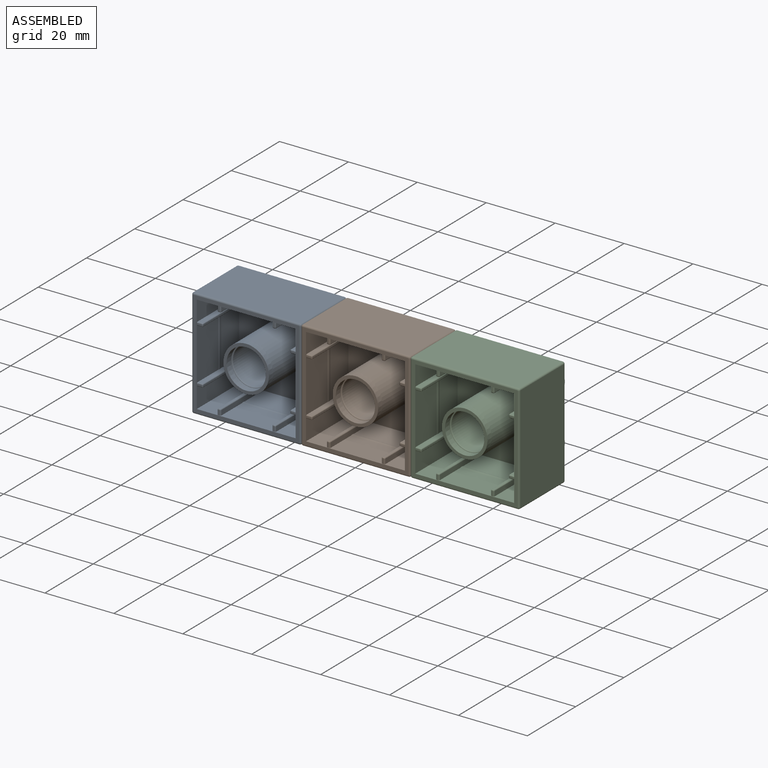
[diagram: assembled view]
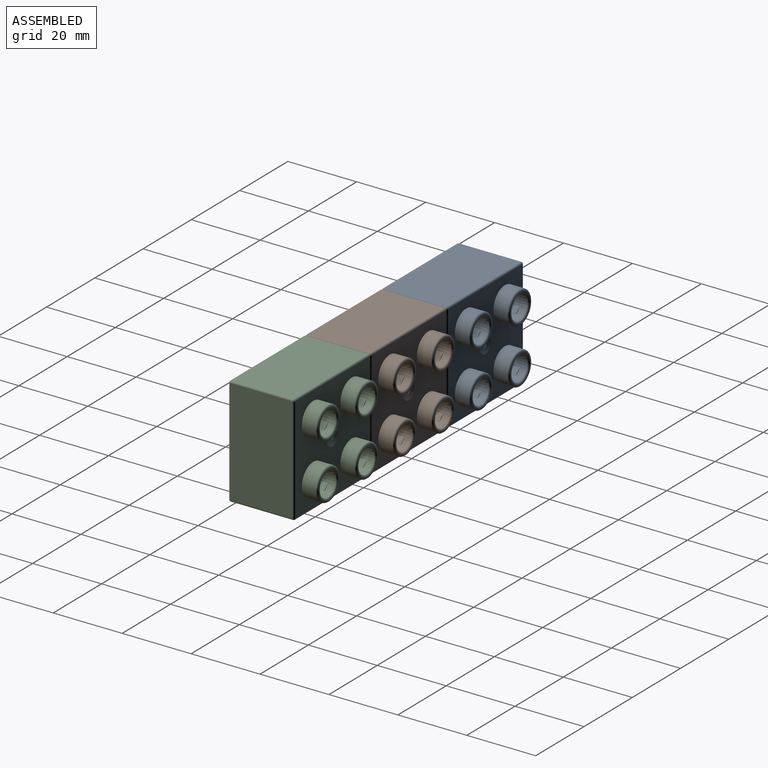
[diagram: assembled view, second angle]
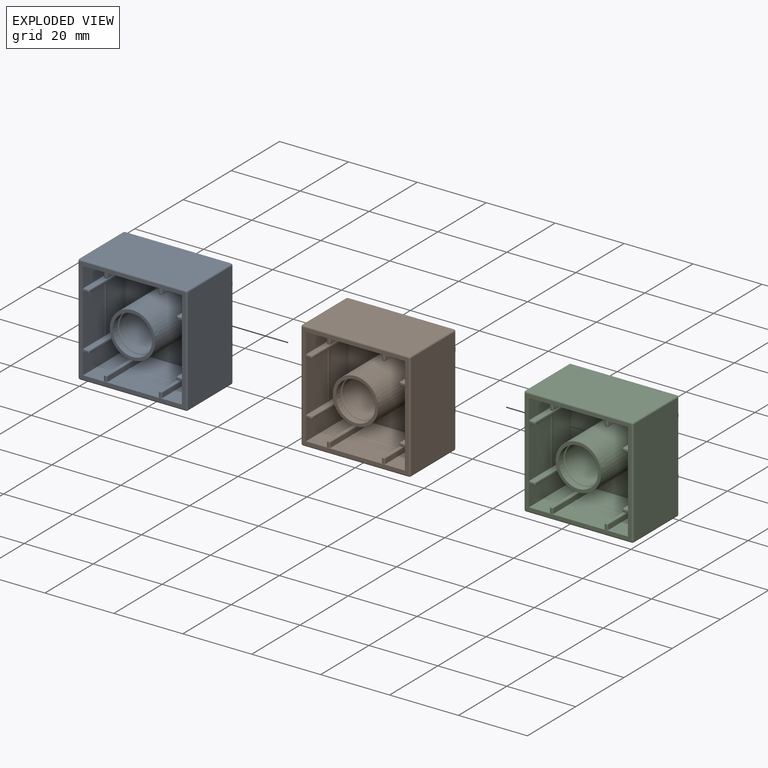
[diagram: exploded view]
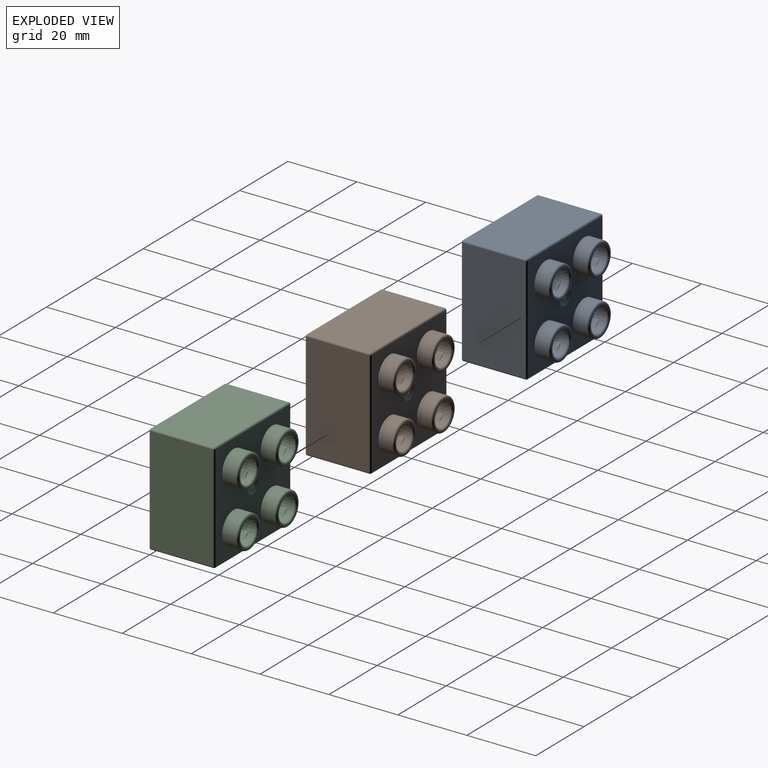
[diagram: exploded view, second angle]
ASSEMBLY  parts=3 mates=2
PART A: 443 faces, bbox 31.7x31.7x23.7 mm
  f0: plane 2.37x0.99mm, normal (0,0,1), area 1.6mm2, adj f4,f5,f6,f7
  f1: plane 2.37x0.99mm, normal (0,0,1), area 1.6mm2, adj f9,f10,f11,f12
  f2: plane 2.37x0.99mm, normal (0,0,1), area 1.6mm2, adj f14,f15,f16,f17
  f3: plane 2.37x0.99mm, normal (0,0,1), area 1.6mm2, adj f19,f20,f21,f22
  f4: bspline ~0.79x0.5mm, area 0.1mm2, adj f0,f5,f7,f24
  f5: bspline ~1.69x0.34mm, area 0.2mm2, adj f0,f4,f6,f24
  f6: bspline ~0.79x0.5mm, area 0.1mm2, adj f0,f5,f7,f24
  f7: bspline ~1.69x0.34mm, area 0.2mm2, adj f0,f4,f6,f24
  f8: bspline ~0.28x0.07mm, area 0mm2, adj f25,f47,f48,f208
  f9: bspline ~0.79x0.5mm, area 0.1mm2, adj f1,f10,f12,f28
  f10: bspline ~1.69x0.34mm, area 0.2mm2, adj f1,f9,f11,f28
  f11: bspline ~0.79x0.5mm, area 0.1mm2, adj f1,f10,f12,f28
  f12: bspline ~1.69x0.34mm, area 0.2mm2, adj f1,f9,f11,f28
  f13: bspline ~0.28x0.07mm, area 0mm2, adj f29,f87,f88,f217
  f14: bspline ~0.79x0.5mm, area 0.1mm2, adj f2,f15,f17,f32
  f15: bspline ~1.69x0.34mm, area 0.2mm2, adj f2,f14,f16,f32
  f16: bspline ~0.79x0.5mm, area 0.1mm2, adj f2,f15,f17,f32
  f17: bspline ~1.69x0.34mm, area 0.2mm2, adj f2,f14,f16,f32
  f18: bspline ~0.28x0.07mm, area 0mm2, adj f33,f127,f128,f226
  f19: bspline ~0.79x0.5mm, area 0.1mm2, adj f3,f20,f22,f36
  f20: bspline ~1.69x0.34mm, area 0.2mm2, adj f3,f19,f21,f36
  f21: bspline ~0.79x0.5mm, area 0.1mm2, adj f3,f20,f22,f36
  f22: bspline ~1.69x0.34mm, area 0.2mm2, adj f3,f19,f21,f36
  f23: bspline ~0.28x0.07mm, area 0mm2, adj f37,f167,f168,f235
  f24: plane 2.67x1.29mm, normal (0,0,1), area 0.6mm2, adj f4,f5,f6,f7,f40,f41,f42,f43
  f25: plane 2.67x1.29mm, normal (0,0,1), area 0.6mm2, adj f8,f44,f45,f46,f47,f48,f49,f50
  f26: plane 2.57x1.35mm, normal (0,0,1), area 0.5mm2, adj f56,f57,f58,f59,f60,f61,f62,f63
  f27: plane 2.58x0.9mm, normal (0,0,1), area 0.3mm2, adj f73,f74,f75,f76,f77,f78,f79
  f28: plane 2.67x1.29mm, normal (0,0,1), area 0.6mm2, adj f9,f10,f11,f12,f80,f81,f82,f83
  f29: plane 2.67x1.29mm, normal (0,0,1), area 0.6mm2, adj f13,f84,f85,f86,f87,f88,f89,f90
  f30: plane 2.57x1.35mm, normal (0,0,1), area 0.5mm2, adj f96,f97,f98,f99,f100,f101,f102,f103
  f31: plane 2.58x0.9mm, normal (0,0,1), area 0.3mm2, adj f113,f114,f115,f116,f117,f118,f119
  f32: plane 2.67x1.29mm, normal (0,0,1), area 0.6mm2, adj f14,f15,f16,f17,f120,f121,f122,f123
  f33: plane 2.67x1.29mm, normal (0,0,1), area 0.6mm2, adj f18,f124,f125,f126,f127,f128,f129,f130
  f34: plane 2.57x1.35mm, normal (0,0,1), area 0.5mm2, adj f136,f137,f138,f139,f140,f141,f142,f143
  f35: plane 2.58x0.9mm, normal (0,0,1), area 0.3mm2, adj f153,f154,f155,f156,f157,f158,f159
  f36: plane 2.67x1.29mm, normal (0,0,1), area 0.6mm2, adj f19,f20,f21,f22,f160,f161,f162,f163
  f37: plane 2.67x1.29mm, normal (0,0,1), area 0.6mm2, adj f23,f164,f165,f166,f167,f168,f169,f170
  f38: plane 2.57x1.35mm, normal (0,0,1), area 0.5mm2, adj f176,f177,f178,f179,f180,f181,f182,f183
  f39: plane 2.58x0.9mm, normal (0,0,1), area 0.3mm2, adj f193,f194,f195,f196,f197,f198,f199
  f40: bspline ~1.69x0.34mm, area 0.2mm2, adj f24,f41,f43,f208
  f41: bspline ~1.09x0.69mm, area 0.1mm2, adj f24,f40,f42,f208
  f42: bspline ~1.69x0.34mm, area 0.2mm2, adj f24,f41,f43,f208
  f43: bspline ~1.09x0.69mm, area 0.1mm2, adj f24,f40,f42,f208
  f44: bspline ~0.77x0.42mm, area 0.1mm2, adj f25,f45,f55,f208
  f45: bspline ~1.69x0.34mm, area 0.2mm2, adj f25,f44,f46,f208
  f46: bspline ~0.79x0.5mm, area 0.1mm2, adj f25,f45,f47,f208
  f47: bspline ~0.86x0.2mm, area 0.1mm2, adj f8,f25,f46,f208
  f48: bspline ~0.19x0.11mm, area 0mm2, adj f8,f25,f49,f208
  f49: bspline ~0.34x0.07mm, area 0mm2, adj f25,f48,f50,f208
  f50: bspline ~0.11x0.1mm, area 0mm2, adj f25,f49,f51,f208
  f51: bspline ~0.92x0.21mm, area 0.1mm2, adj f25,f50,f52,f208
  f52: bspline ~1.09x0.69mm, area 0.1mm2, adj f25,f51,f53,f208
  f53: bspline ~1.69x0.34mm, area 0.2mm2, adj f25,f52,f54,f208
  f54: bspline ~1.07x0.57mm, area 0.1mm2, adj f25,f53,f55,f208
  f55: bspline ~0.19x0.11mm, area 0mm2, adj f25,f44,f54,f208
  f56: bspline ~0.09x0.09mm, area 0mm2, adj f26,f57,f72,f208
  f57: bspline ~0.81x0.07mm, area 0.1mm2, adj f26,f56,f58,f208
  f58: bspline ~0.1x0.1mm, area 0mm2, adj f26,f57,f59,f208
  f59: bspline ~0.1x0.1mm, area 0mm2, adj f26,f58,f60,f208
  f60: bspline ~0.77x0.07mm, area 0.1mm2, adj f26,f59,f61,f208
  f61: bspline ~1.14x0.24mm, area 0.1mm2, adj f26,f60,f62,f208
  f62: bspline ~0.44x0.07mm, area 0mm2, adj f26,f61,f63,f208
  f63: bspline ~0.1x0.1mm, area 0mm2, adj f26,f62,f64,f208
  f64: bspline ~0.1x0.1mm, area 0mm2, adj f26,f63,f65,f208
  f65: bspline ~0.46x0.07mm, area 0mm2, adj f26,f64,f66,f208
  f66: bspline ~1.14x0.24mm, area 0.1mm2, adj f26,f65,f67,f208
  f67: bspline ~0.73x0.07mm, area 0.1mm2, adj f26,f66,f68,f208
  f68: bspline ~0.1x0.1mm, area 0mm2, adj f26,f67,f69,f208
  f69: bspline ~0.1x0.1mm, area 0mm2, adj f26,f68,f70,f208
  f70: bspline ~0.79x0.07mm, area 0.1mm2, adj f26,f69,f71,f208
  f71: bspline ~0.11x0.1mm, area 0mm2, adj f26,f70,f72,f208
  f72: bspline ~2.48x0.48mm, area 0.2mm2, adj f26,f56,f71,f208
  f73: bspline ~2.48x0.48mm, area 0.2mm2, adj f27,f74,f79,f208
  f74: bspline ~0.19x0.12mm, area 0mm2, adj f27,f73,f75,f208
  f75: bspline ~2.42x0.47mm, area 0.2mm2, adj f27,f74,f76,f208
  f76: bspline ~0.73x0.07mm, area 0.1mm2, adj f27,f75,f77,f208
  f77: bspline ~0.19x0.11mm, area 0mm2, adj f27,f76,f78,f208
  f78: bspline ~0.79x0.07mm, area 0.1mm2, adj f27,f77,f79,f208
  f79: bspline ~0.11x0.1mm, area 0mm2, adj f27,f73,f78,f208
  f80: bspline ~1.69x0.34mm, area 0.2mm2, adj f28,f81,f83,f217
  f81: bspline ~1.09x0.69mm, area 0.1mm2, adj f28,f80,f82,f217
  f82: bspline ~1.69x0.34mm, area 0.2mm2, adj f28,f81,f83,f217
  f83: bspline ~1.09x0.69mm, area 0.1mm2, adj f28,f80,f82,f217
  f84: bspline ~0.77x0.42mm, area 0.1mm2, adj f29,f85,f95,f217
  f85: bspline ~1.69x0.34mm, area 0.2mm2, adj f29,f84,f86,f217
  f86: bspline ~0.79x0.5mm, area 0.1mm2, adj f29,f85,f87,f217
  f87: bspline ~0.86x0.2mm, area 0.1mm2, adj f13,f29,f86,f217
  f88: bspline ~0.19x0.11mm, area 0mm2, adj f13,f29,f89,f217
  f89: bspline ~0.34x0.07mm, area 0mm2, adj f29,f88,f90,f217
  f90: bspline ~0.11x0.1mm, area 0mm2, adj f29,f89,f91,f217
  f91: bspline ~0.92x0.21mm, area 0.1mm2, adj f29,f90,f92,f217
  f92: bspline ~1.09x0.69mm, area 0.1mm2, adj f29,f91,f93,f217
  f93: bspline ~1.69x0.34mm, area 0.2mm2, adj f29,f92,f94,f217
  f94: bspline ~1.07x0.57mm, area 0.1mm2, adj f29,f93,f95,f217
  f95: bspline ~0.19x0.11mm, area 0mm2, adj f29,f84,f94,f217
  f96: bspline ~0.09x0.09mm, area 0mm2, adj f30,f97,f112,f217
  f97: bspline ~0.81x0.07mm, area 0.1mm2, adj f30,f96,f98,f217
  f98: bspline ~0.1x0.1mm, area 0mm2, adj f30,f97,f99,f217
  f99: bspline ~0.1x0.1mm, area 0mm2, adj f30,f98,f100,f217
  f100: bspline ~0.77x0.07mm, area 0.1mm2, adj f30,f99,f101,f217
  f101: bspline ~1.14x0.24mm, area 0.1mm2, adj f30,f100,f102,f217
  f102: bspline ~0.44x0.07mm, area 0mm2, adj f30,f101,f103,f217
  f103: bspline ~0.1x0.1mm, area 0mm2, adj f30,f102,f104,f217
  f104: bspline ~0.1x0.1mm, area 0mm2, adj f30,f103,f105,f217
  f105: bspline ~0.46x0.07mm, area 0mm2, adj f30,f104,f106,f217
  f106: bspline ~1.14x0.24mm, area 0.1mm2, adj f30,f105,f107,f217
  f107: bspline ~0.73x0.07mm, area 0.1mm2, adj f30,f106,f108,f217
  f108: bspline ~0.1x0.1mm, area 0mm2, adj f30,f107,f109,f217
  f109: bspline ~0.1x0.1mm, area 0mm2, adj f30,f108,f110,f217
  f110: bspline ~0.79x0.07mm, area 0.1mm2, adj f30,f109,f111,f217
  f111: bspline ~0.11x0.1mm, area 0mm2, adj f30,f110,f112,f217
  f112: bspline ~2.48x0.48mm, area 0.2mm2, adj f30,f96,f111,f217
  f113: bspline ~2.48x0.48mm, area 0.2mm2, adj f31,f114,f119,f217
  f114: bspline ~0.19x0.12mm, area 0mm2, adj f31,f113,f115,f217
  f115: bspline ~2.42x0.47mm, area 0.2mm2, adj f31,f114,f116,f217
  f116: bspline ~0.73x0.07mm, area 0.1mm2, adj f31,f115,f117,f217
  f117: bspline ~0.19x0.11mm, area 0mm2, adj f31,f116,f118,f217
  f118: bspline ~0.79x0.07mm, area 0.1mm2, adj f31,f117,f119,f217
  f119: bspline ~0.11x0.1mm, area 0mm2, adj f31,f113,f118,f217
  f120: bspline ~1.69x0.34mm, area 0.2mm2, adj f32,f121,f123,f226
  f121: bspline ~1.09x0.69mm, area 0.1mm2, adj f32,f120,f122,f226
  f122: bspline ~1.69x0.34mm, area 0.2mm2, adj f32,f121,f123,f226
  f123: bspline ~1.09x0.69mm, area 0.1mm2, adj f32,f120,f122,f226
  f124: bspline ~0.77x0.42mm, area 0.1mm2, adj f33,f125,f135,f226
  f125: bspline ~1.69x0.34mm, area 0.2mm2, adj f33,f124,f126,f226
  f126: bspline ~0.79x0.5mm, area 0.1mm2, adj f33,f125,f127,f226
  f127: bspline ~0.86x0.2mm, area 0.1mm2, adj f18,f33,f126,f226
  f128: bspline ~0.19x0.11mm, area 0mm2, adj f18,f33,f129,f226
  f129: bspline ~0.34x0.07mm, area 0mm2, adj f33,f128,f130,f226
  f130: bspline ~0.11x0.1mm, area 0mm2, adj f33,f129,f131,f226
  f131: bspline ~0.92x0.21mm, area 0.1mm2, adj f33,f130,f132,f226
  f132: bspline ~1.09x0.69mm, area 0.1mm2, adj f33,f131,f133,f226
  f133: bspline ~1.69x0.34mm, area 0.2mm2, adj f33,f132,f134,f226
  f134: bspline ~1.07x0.57mm, area 0.1mm2, adj f33,f133,f135,f226
  f135: bspline ~0.19x0.11mm, area 0mm2, adj f33,f124,f134,f226
  f136: bspline ~0.09x0.09mm, area 0mm2, adj f34,f137,f152,f226
  f137: bspline ~0.81x0.07mm, area 0.1mm2, adj f34,f136,f138,f226
  f138: bspline ~0.1x0.1mm, area 0mm2, adj f34,f137,f139,f226
  f139: bspline ~0.1x0.1mm, area 0mm2, adj f34,f138,f140,f226
  f140: bspline ~0.77x0.07mm, area 0.1mm2, adj f34,f139,f141,f226
  f141: bspline ~1.14x0.24mm, area 0.1mm2, adj f34,f140,f142,f226
  f142: bspline ~0.44x0.07mm, area 0mm2, adj f34,f141,f143,f226
  f143: bspline ~0.1x0.1mm, area 0mm2, adj f34,f142,f144,f226
  f144: bspline ~0.1x0.1mm, area 0mm2, adj f34,f143,f145,f226
  f145: bspline ~0.46x0.07mm, area 0mm2, adj f34,f144,f146,f226
  f146: bspline ~1.14x0.24mm, area 0.1mm2, adj f34,f145,f147,f226
  f147: bspline ~0.73x0.07mm, area 0.1mm2, adj f34,f146,f148,f226
  f148: bspline ~0.1x0.1mm, area 0mm2, adj f34,f147,f149,f226
  f149: bspline ~0.1x0.1mm, area 0mm2, adj f34,f148,f150,f226
  f150: bspline ~0.79x0.07mm, area 0.1mm2, adj f34,f149,f151,f226
  f151: bspline ~0.11x0.1mm, area 0mm2, adj f34,f150,f152,f226
  f152: bspline ~2.48x0.48mm, area 0.2mm2, adj f34,f136,f151,f226
  f153: bspline ~2.48x0.48mm, area 0.2mm2, adj f35,f154,f159,f226
  f154: bspline ~0.19x0.12mm, area 0mm2, adj f35,f153,f155,f226
  f155: bspline ~2.42x0.47mm, area 0.2mm2, adj f35,f154,f156,f226
  f156: bspline ~0.73x0.07mm, area 0.1mm2, adj f35,f155,f157,f226
  f157: bspline ~0.19x0.11mm, area 0mm2, adj f35,f156,f158,f226
  f158: bspline ~0.79x0.07mm, area 0.1mm2, adj f35,f157,f159,f226
  f159: bspline ~0.11x0.1mm, area 0mm2, adj f35,f153,f158,f226
  f160: bspline ~1.69x0.34mm, area 0.2mm2, adj f36,f161,f163,f235
  f161: bspline ~1.09x0.69mm, area 0.1mm2, adj f36,f160,f162,f235
  f162: bspline ~1.69x0.34mm, area 0.2mm2, adj f36,f161,f163,f235
  f163: bspline ~1.09x0.69mm, area 0.1mm2, adj f36,f160,f162,f235
  f164: bspline ~0.77x0.42mm, area 0.1mm2, adj f37,f165,f175,f235
  f165: bspline ~1.69x0.34mm, area 0.2mm2, adj f37,f164,f166,f235
  f166: bspline ~0.79x0.5mm, area 0.1mm2, adj f37,f165,f167,f235
  f167: bspline ~0.86x0.2mm, area 0.1mm2, adj f23,f37,f166,f235
  f168: bspline ~0.19x0.11mm, area 0mm2, adj f23,f37,f169,f235
  f169: bspline ~0.34x0.07mm, area 0mm2, adj f37,f168,f170,f235
  f170: bspline ~0.11x0.1mm, area 0mm2, adj f37,f169,f171,f235
  f171: bspline ~0.92x0.21mm, area 0.1mm2, adj f37,f170,f172,f235
  f172: bspline ~1.09x0.69mm, area 0.1mm2, adj f37,f171,f173,f235
  f173: bspline ~1.69x0.34mm, area 0.2mm2, adj f37,f172,f174,f235
  f174: bspline ~1.07x0.57mm, area 0.1mm2, adj f37,f173,f175,f235
  f175: bspline ~0.19x0.11mm, area 0mm2, adj f37,f164,f174,f235
  f176: bspline ~0.09x0.09mm, area 0mm2, adj f38,f177,f192,f235
  f177: bspline ~0.81x0.07mm, area 0.1mm2, adj f38,f176,f178,f235
  f178: bspline ~0.1x0.1mm, area 0mm2, adj f38,f177,f179,f235
  f179: bspline ~0.1x0.1mm, area 0mm2, adj f38,f178,f180,f235
  f180: bspline ~0.77x0.07mm, area 0.1mm2, adj f38,f179,f181,f235
  f181: bspline ~1.14x0.24mm, area 0.1mm2, adj f38,f180,f182,f235
  f182: bspline ~0.44x0.07mm, area 0mm2, adj f38,f181,f183,f235
  f183: bspline ~0.1x0.1mm, area 0mm2, adj f38,f182,f184,f235
  f184: bspline ~0.1x0.1mm, area 0mm2, adj f38,f183,f185,f235
  f185: bspline ~0.46x0.07mm, area 0mm2, adj f38,f184,f186,f235
  f186: bspline ~1.14x0.24mm, area 0.1mm2, adj f38,f185,f187,f235
  f187: bspline ~0.73x0.07mm, area 0.1mm2, adj f38,f186,f188,f235
  f188: bspline ~0.1x0.1mm, area 0mm2, adj f38,f187,f189,f235
  f189: bspline ~0.1x0.1mm, area 0mm2, adj f38,f188,f190,f235
  f190: bspline ~0.79x0.07mm, area 0.1mm2, adj f38,f189,f191,f235
  f191: bspline ~0.11x0.1mm, area 0mm2, adj f38,f190,f192,f235
  f192: bspline ~2.48x0.48mm, area 0.2mm2, adj f38,f176,f191,f235
  f193: bspline ~2.48x0.48mm, area 0.2mm2, adj f39,f194,f199,f235
  f194: bspline ~0.19x0.12mm, area 0mm2, adj f39,f193,f195,f235
  f195: bspline ~2.42x0.47mm, area 0.2mm2, adj f39,f194,f196,f235
  f196: bspline ~0.73x0.07mm, area 0.1mm2, adj f39,f195,f197,f235
  f197: bspline ~0.19x0.11mm, area 0mm2, adj f39,f196,f198,f235
  f198: bspline ~0.79x0.07mm, area 0.1mm2, adj f39,f197,f199,f235
  f199: bspline ~0.11x0.1mm, area 0mm2, adj f39,f193,f198,f235
  f200: plane 1.65x1.65mm, normal (0,0,1), area 0.3mm2, adj f201,f236
  f201: plane 2.1x1.65mm, normal (-0.71,-0.71,0), area 4.9mm2, adj f200,f208,f236
  f202: plane 1.65x1.65mm, normal (0,0,1), area 0.3mm2, adj f203,f236
  f203: plane 2.1x1.65mm, normal (0.71,-0.71,0), area 4.9mm2, adj f202,f208,f236
  f204: plane 1.65x1.65mm, normal (0,0,1), area 0.3mm2, adj f205,f237
  f205: plane 2.1x1.65mm, normal (0.71,0.71,0), area 4.9mm2, adj f204,f208,f237
  f206: plane 1.65x1.65mm, normal (0,0,1), area 0.3mm2, adj f207,f237
  f207: plane 2.1x1.65mm, normal (-0.71,0.71,0), area 4.9mm2, adj f206,f208,f237
  f208: plane 7x7mm, normal (0,0,1), area 31.8mm2, adj f8,f40,f41,f42,f43,f44,f45,f46
  f209: plane 1.65x1.65mm, normal (0,0,1), area 0.3mm2, adj f210,f238
  f210: plane 2.1x1.65mm, normal (-0.71,-0.71,0), area 4.9mm2, adj f209,f217,f238
  f211: plane 1.65x1.65mm, normal (0,0,1), area 0.3mm2, adj f212,f238
  f212: plane 2.1x1.65mm, normal (0.71,-0.71,0), area 4.9mm2, adj f211,f217,f238
  f213: plane 1.65x1.65mm, normal (0,0,1), area 0.3mm2, adj f214,f239
  f214: plane 2.1x1.65mm, normal (0.71,0.71,0), area 4.9mm2, adj f213,f217,f239
  f215: plane 1.65x1.65mm, normal (0,0,1), area 0.3mm2, adj f216,f239
  f216: plane 2.1x1.65mm, normal (-0.71,0.71,0), area 4.9mm2, adj f215,f217,f239
  f217: plane 7x7mm, normal (0,0,1), area 31.8mm2, adj f13,f80,f81,f82,f83,f84,f85,f86
  f218: plane 1.65x1.65mm, normal (0,0,1), area 0.3mm2, adj f219,f240
  f219: plane 2.1x1.65mm, normal (-0.71,-0.71,0), area 4.9mm2, adj f218,f226,f240
  f220: plane 1.65x1.65mm, normal (0,0,1), area 0.3mm2, adj f221,f240
  f221: plane 2.1x1.65mm, normal (0.71,-0.71,0), area 4.9mm2, adj f220,f226,f240
  f222: plane 1.65x1.65mm, normal (0,0,1), area 0.3mm2, adj f223,f241
  f223: plane 2.1x1.65mm, normal (0.71,0.71,0), area 4.9mm2, adj f222,f226,f241
  f224: plane 1.65x1.65mm, normal (0,0,1), area 0.3mm2, adj f225,f241
  f225: plane 2.1x1.65mm, normal (-0.71,0.71,0), area 4.9mm2, adj f224,f226,f241
  f226: plane 7x7mm, normal (0,0,1), area 31.8mm2, adj f18,f120,f121,f122,f123,f124,f125,f126
  f227: plane 1.65x1.65mm, normal (0,0,1), area 0.3mm2, adj f228,f242
  f228: plane 2.1x1.65mm, normal (-0.71,-0.71,0), area 4.9mm2, adj f227,f235,f242
  f229: plane 1.65x1.65mm, normal (0,0,1), area 0.3mm2, adj f230,f242
  f230: plane 2.1x1.65mm, normal (0.71,-0.71,0), area 4.9mm2, adj f229,f235,f242
  f231: plane 1.65x1.65mm, normal (0,0,1), area 0.3mm2, adj f232,f243
  f232: plane 2.1x1.65mm, normal (0.71,0.71,0), area 4.9mm2, adj f231,f235,f243
  f233: plane 1.65x1.65mm, normal (0,0,1), area 0.3mm2, adj f234,f243
  f234: plane 2.1x1.65mm, normal (-0.71,0.71,0), area 4.9mm2, adj f233,f235,f243
  f235: plane 7x7mm, normal (0,0,1), area 31.8mm2, adj f23,f160,f161,f162,f163,f164,f165,f166
  f236: bspline ~7x4.1mm, area 35.1mm2, adj f200,f201,f202,f203,f208,f237,f244
  f237: bspline ~7x4.1mm, area 35.1mm2, adj f204,f205,f206,f207,f208,f236,f245
  f238: bspline ~7x4.1mm, area 35.1mm2, adj f209,f210,f211,f212,f217,f239,f246
  f239: bspline ~7x4.1mm, area 35.1mm2, adj f213,f214,f215,f216,f217,f238,f247
  f240: bspline ~7x4.1mm, area 35.1mm2, adj f218,f219,f220,f221,f226,f241,f248
  f241: bspline ~7x4.1mm, area 35.1mm2, adj f222,f223,f224,f225,f226,f240,f249
  f242: bspline ~7x4.1mm, area 35.1mm2, adj f227,f228,f229,f230,f235,f243,f250
  f243: bspline ~7x4.1mm, area 35.1mm2, adj f231,f232,f233,f234,f235,f242,f251
  f244: bspline ~8x4.49mm, area 9.1mm2, adj f236,f245,f252
  f245: bspline ~8x4.49mm, area 9.1mm2, adj f237,f244,f252
  f246: bspline ~8x4.49mm, area 9.1mm2, adj f238,f247,f253
  f247: bspline ~8x4.49mm, area 9.1mm2, adj f239,f246,f253
  f248: bspline ~8x4.49mm, area 9.1mm2, adj f240,f249,f254
  f249: bspline ~8x4.49mm, area 9.1mm2, adj f241,f248,f254
  f250: bspline ~8x4.49mm, area 9.1mm2, adj f242,f251,f255
  f251: bspline ~8x4.49mm, area 9.1mm2, adj f243,f250,f255
  f252: plane 8.4x8.4mm, normal (0,0,1), area 5.2mm2, adj f244,f245,f258,f259
  f253: plane 8.4x8.4mm, normal (0,0,1), area 5.2mm2, adj f246,f247,f260,f261
  f254: plane 8.4x8.4mm, normal (0,0,1), area 5.2mm2, adj f248,f249,f262,f263
  f255: plane 8.4x8.4mm, normal (0,0,1), area 5.2mm2, adj f250,f251,f264,f265
  f256: plane 1.4x1.4mm, normal (0,0,1), area 1.5mm2, adj f266,f267
  f257: bspline ~0.5x0.5mm, area 0.2mm2, adj f342,f343,f344
  f258: bspline ~9.4x5.28mm, area 11.1mm2, adj f252,f259,f345
  f259: bspline ~9.4x5.28mm, area 11.1mm2, adj f252,f258,f346
  f260: bspline ~9.4x5.28mm, area 11.1mm2, adj f253,f261,f347
  f261: bspline ~9.4x5.28mm, area 11.1mm2, adj f253,f260,f348
  f262: bspline ~9.4x5.28mm, area 11.1mm2, adj f254,f263,f349
  f263: bspline ~9.4x5.28mm, area 11.1mm2, adj f254,f262,f350
  f264: bspline ~9.4x5.28mm, area 11.1mm2, adj f255,f265,f351
  f265: bspline ~9.4x5.28mm, area 11.1mm2, adj f255,f264,f352
  f266: bspline ~1.4x0.79mm, area 0.3mm2, adj f256,f267,f353
  f267: bspline ~1.4x0.79mm, area 0.3mm2, adj f256,f266,f354
  f268: bspline ~0.4x0.3mm, area 0.2mm2, adj f269,f277,f293,f355
  f269: bspline ~0.3x0.3mm, area 0.1mm2, adj f268,f292,f356
  f270: plane 14.9x0.13mm, normal (-1,0,0), area 1.9mm2, adj f273,f357,f358,f359
  f271: plane 14.9x7.79mm, normal (0,0,-1), area 71.3mm2, adj f272,f291,f309,f335,f336,f357,f359
  f272: plane 14.9x7.6mm, normal (-1,0,0), area 113.2mm2, adj f271,f273,f357,f359
  f273: bspline ~14.9x0.44mm, area 6.7mm2, adj f270,f272,f357,f359
  f274: bspline ~0.3x0.3mm, area 0.1mm2, adj f275,f337,f360
  f275: bspline ~0.4x0.3mm, area 0.2mm2, adj f274,f276,f338,f361
  f276: bspline ~0.3x0.3mm, area 0.1mm2, adj f275,f339,f362
  f277: bspline ~0.3x0.3mm, area 0.1mm2, adj f268,f294,f365
  f278: bspline ~0.4x0.3mm, area 0.2mm2, adj f279,f295,f312,f366
  f279: bspline ~0.3x0.3mm, area 0.1mm2, adj f278,f311,f367
  f280: plane 14.9x0.13mm, normal (0,1,0), area 1.9mm2, adj f283,f368,f369,f370
  f281: plane 14.9x7.79mm, normal (0,0,-1), area 71.3mm2, adj f282,f290,f309,f310,f368,f370
  f282: plane 14.9x7.6mm, normal (0,1,0), area 113.2mm2, adj f281,f283,f368,f370
  f283: bspline ~14.9x0.44mm, area 6.7mm2, adj f280,f282,f368,f370
  f284: bspline ~0.3x0.3mm, area 0.1mm2, adj f285,f289,f371
  f285: bspline ~0.4x0.3mm, area 0.2mm2, adj f284,f286,f288,f372
  f286: bspline ~0.3x0.3mm, area 0.1mm2, adj f285,f287,f373
  f287: bspline ~16.9x0.3mm, area 8mm2, adj f286,f288,f374,f375
  f288: plane 16.9x0.4mm, normal (0,1,0), area 6.8mm2, adj f285,f287,f289,f375
  f289: bspline ~16.9x0.3mm, area 8mm2, adj f284,f288,f370,f375
  f290: plane 6.73x6.69mm, normal (-0.59,-0.59,-0.55), area 3.3mm2, adj f281,f309,f370,f375
  f291: plane 6.73x6.69mm, normal (0.59,0.59,-0.55), area 3.3mm2, adj f271,f309,f357,f375
  f292: bspline ~16.9x0.3mm, area 8mm2, adj f269,f293,f357,f375
  f293: plane 16.9x0.4mm, normal (-1,0,0), area 6.8mm2, adj f268,f292,f294,f375
  f294: bspline ~16.9x0.3mm, area 8mm2, adj f277,f293,f364,f375
  f295: bspline ~0.3x0.3mm, area 0.1mm2, adj f278,f313,f377
  f296: bspline ~0.4x0.3mm, area 0.2mm2, adj f297,f314,f325,f378
  f297: bspline ~0.3x0.3mm, area 0.1mm2, adj f296,f326,f379
  f298: plane 14.9x0.13mm, normal (1,0,0), area 1.9mm2, adj f301,f380,f381,f382
  f299: plane 14.9x7.79mm, normal (0,0,-1), area 71.3mm2, adj f300,f308,f309,f327,f335,f380,f382
  f300: plane 14.9x7.6mm, normal (1,0,0), area 113.2mm2, adj f299,f301,f380,f382
  f301: bspline ~14.9x0.44mm, area 6.7mm2, adj f298,f300,f380,f382
  f302: bspline ~0.3x0.3mm, area 0.1mm2, adj f303,f307,f383
  f303: bspline ~0.4x0.3mm, area 0.2mm2, adj f302,f304,f306,f384
  f304: bspline ~0.3x0.3mm, area 0.1mm2, adj f303,f305,f385
  f305: bspline ~16.9x0.3mm, area 8mm2, adj f304,f306,f386,f387
  f306: plane 16.9x0.4mm, normal (1,0,0), area 6.8mm2, adj f303,f305,f307,f387
  f307: bspline ~16.9x0.3mm, area 8mm2, adj f302,f306,f382,f387
  f308: plane 6.73x6.69mm, normal (-0.59,0.59,-0.55), area 3.3mm2, adj f299,f309,f382,f387
  f309: bspline ~15.6x13.2mm, area 318.3mm2, adj f271,f281,f290,f291,f299,f308,f310,f335
  f310: plane 6.73x6.69mm, normal (0.59,-0.59,-0.55), area 3.3mm2, adj f281,f309,f368,f387
  f311: bspline ~16.9x0.3mm, area 8mm2, adj f279,f312,f368,f387
  f312: plane 16.9x0.4mm, normal (0,1,0), area 6.8mm2, adj f278,f311,f313,f387
  f313: bspline ~16.9x0.3mm, area 8mm2, adj f295,f312,f376,f387
  f314: bspline ~0.3x0.3mm, area 0.1mm2, adj f296,f324,f389
  f315: bspline ~0.4x0.3mm, area 0.2mm2, adj f316,f332,f341,f390
  f316: bspline ~0.3x0.3mm, area 0.1mm2, adj f315,f333,f391
  f317: plane 14.9x0.13mm, normal (0,-1,0), area 1.9mm2, adj f320,f392,f393,f394
  f318: plane 14.9x7.79mm, normal (0,0,-1), area 71.3mm2, adj f319,f328,f334,f335,f392,f394
  f319: plane 14.9x7.6mm, normal (0,-1,0), area 113.2mm2, adj f318,f320,f392,f394
  f320: bspline ~14.9x0.44mm, area 6.7mm2, adj f317,f319,f392,f394
  f321: bspline ~0.3x0.3mm, area 0.1mm2, adj f322,f329,f395
  f322: bspline ~0.4x0.3mm, area 0.2mm2, adj f321,f323,f330,f396
  f323: bspline ~0.3x0.3mm, area 0.1mm2, adj f322,f331,f397
  f324: bspline ~16.9x0.3mm, area 8mm2, adj f314,f325,f388,f399
  f325: plane 16.9x0.4mm, normal (1,0,0), area 6.8mm2, adj f296,f324,f326,f399
  f326: bspline ~16.9x0.3mm, area 8mm2, adj f297,f325,f380,f399
  f327: plane 6.73x6.69mm, normal (-0.59,-0.59,-0.55), area 3.3mm2, adj f299,f335,f380,f399
  f328: plane 6.73x6.69mm, normal (0.59,0.59,-0.55), area 3.3mm2, adj f318,f335,f394,f399
  f329: bspline ~16.9x0.3mm, area 8mm2, adj f321,f330,f394,f399
  f330: plane 16.9x0.4mm, normal (0,-1,0), area 6.8mm2, adj f322,f329,f331,f399
  f331: bspline ~16.9x0.3mm, area 8mm2, adj f323,f330,f398,f399
  f332: plane 16.9x0.4mm, normal (0,-1,0), area 6.8mm2, adj f315,f333,f340,f400
  f333: bspline ~16.9x0.3mm, area 8mm2, adj f316,f332,f392,f400
  f334: plane 6.73x6.69mm, normal (-0.59,0.59,-0.55), area 3.3mm2, adj f318,f335,f392,f400
  f335: bspline ~15.6x13.2mm, area 318.3mm2, adj f271,f299,f309,f318,f327,f328,f334,f336
  f336: plane 6.73x6.69mm, normal (0.59,-0.59,-0.55), area 3.3mm2, adj f271,f335,f359,f400
  f337: bspline ~16.9x0.3mm, area 8mm2, adj f274,f338,f359,f400
  f338: plane 16.9x0.4mm, normal (-1,0,0), area 6.8mm2, adj f275,f337,f339,f400
  f339: bspline ~16.9x0.3mm, area 8mm2, adj f276,f338,f363,f400
  f340: bspline ~16.9x0.3mm, area 8mm2, adj f332,f341,f400,f401
  f341: bspline ~0.3x0.3mm, area 0.1mm2, adj f315,f340,f402
  f342: bspline ~18.1x0.5mm, area 14.2mm2, adj f257,f403,f404,f406
  f343: bspline ~30.7x0.5mm, area 24.1mm2, adj f257,f406,f407,f408
  f344: bspline ~30.7x0.5mm, area 24.1mm2, adj f257,f404,f405,f408
  f345: bspline ~9.4x5.28mm, area 60.5mm2, adj f258,f346,f408
  f346: bspline ~9.4x5.28mm, area 60.5mm2, adj f259,f345,f408
  f347: bspline ~9.4x5.28mm, area 60.5mm2, adj f260,f348,f408
  f348: bspline ~9.4x5.28mm, area 60.5mm2, adj f261,f347,f408
  f349: bspline ~9.4x5.28mm, area 60.5mm2, adj f262,f350,f408
  f350: bspline ~9.4x5.28mm, area 60.5mm2, adj f263,f349,f408
  f351: bspline ~9.4x5.28mm, area 60.5mm2, adj f264,f352,f408
  f352: bspline ~9.4x5.28mm, area 60.5mm2, adj f265,f351,f408
  f353: bspline ~4.61x2.59mm, area 7.7mm2, adj f266,f354,f408
  f354: bspline ~4.61x2.59mm, area 7.7mm2, adj f267,f353,f408
  f355: plane 1.4x0.4mm, normal (0,0,-1), area 0.6mm2, adj f268,f356,f365,f410
  f356: bspline ~1.4x0.3mm, area 0.7mm2, adj f269,f355,f357,f410
  f357: plane 17.2x1.4mm, normal (0,1,0), area 24mm2, adj f270,f271,f272,f273,f291,f292,f356,f358
  f358: bspline ~14.9x0.44mm, area 6.7mm2, adj f270,f357,f359,f410
  f359: plane 17.2x1.4mm, normal (0,-1,0), area 24mm2, adj f270,f271,f272,f273,f336,f337,f358,f360
  f360: bspline ~1.4x0.3mm, area 0.7mm2, adj f274,f359,f361,f410
  f361: plane 1.4x0.4mm, normal (0,0,-1), area 0.6mm2, adj f275,f360,f362,f410
  f362: bspline ~1.4x0.3mm, area 0.7mm2, adj f276,f361,f363,f410
  f363: plane 16.9x1.4mm, normal (0,1,0), area 23.7mm2, adj f339,f362,f400,f410
  f364: plane 16.9x1.4mm, normal (0,-1,0), area 23.7mm2, adj f294,f365,f375,f410
  f365: bspline ~1.4x0.3mm, area 0.7mm2, adj f277,f355,f364,f410
  f366: plane 1.4x0.4mm, normal (0,0,-1), area 0.6mm2, adj f278,f367,f377,f411
  f367: bspline ~1.4x0.3mm, area 0.7mm2, adj f279,f366,f368,f411
  f368: plane 17.2x1.4mm, normal (1,0,0), area 24mm2, adj f280,f281,f282,f283,f310,f311,f367,f369
  f369: bspline ~14.9x0.44mm, area 6.7mm2, adj f280,f368,f370,f411
  f370: plane 17.2x1.4mm, normal (-1,0,0), area 24mm2, adj f280,f281,f282,f283,f289,f290,f369,f371
  f371: bspline ~1.4x0.3mm, area 0.7mm2, adj f284,f370,f372,f411
  f372: plane 1.4x0.4mm, normal (0,0,-1), area 0.6mm2, adj f285,f371,f373,f411
  f373: bspline ~1.4x0.3mm, area 0.7mm2, adj f286,f372,f374,f411
  f374: plane 16.9x1.4mm, normal (1,0,0), area 23.7mm2, adj f287,f373,f375,f411
  f375: plane 13.35x13.35mm, normal (0,0,-1), area 93.4mm2, adj f287,f288,f289,f290,f291,f292,f293,f294
  f376: plane 16.9x1.4mm, normal (-1,0,0), area 23.7mm2, adj f313,f377,f387,f411
  f377: bspline ~1.4x0.3mm, area 0.7mm2, adj f295,f366,f376,f411
  f378: plane 1.4x0.4mm, normal (0,0,-1), area 0.6mm2, adj f296,f379,f389,f412
  f379: bspline ~1.4x0.3mm, area 0.7mm2, adj f297,f378,f380,f412
  f380: plane 17.2x1.4mm, normal (0,-1,0), area 24mm2, adj f298,f299,f300,f301,f326,f327,f379,f381
  f381: bspline ~14.9x0.44mm, area 6.7mm2, adj f298,f380,f382,f412
  f382: plane 17.2x1.4mm, normal (0,1,0), area 24mm2, adj f298,f299,f300,f301,f307,f308,f381,f383
  f383: bspline ~1.4x0.3mm, area 0.7mm2, adj f302,f382,f384,f412
  f384: plane 1.4x0.4mm, normal (0,0,-1), area 0.6mm2, adj f303,f383,f385,f412
  f385: bspline ~1.4x0.3mm, area 0.7mm2, adj f304,f384,f386,f412
  f386: plane 16.9x1.4mm, normal (0,-1,0), area 23.7mm2, adj f305,f385,f387,f412
  f387: plane 13.35x13.35mm, normal (0,0,-1), area 93.4mm2, adj f305,f306,f307,f308,f309,f310,f311,f312
  f388: plane 16.9x1.4mm, normal (0,1,0), area 23.7mm2, adj f324,f389,f399,f412
  f389: bspline ~1.4x0.3mm, area 0.7mm2, adj f314,f378,f388,f412
  f390: plane 1.4x0.4mm, normal (0,0,-1), area 0.6mm2, adj f315,f391,f402,f413
  f391: bspline ~1.4x0.3mm, area 0.7mm2, adj f316,f390,f392,f413
  f392: plane 17.2x1.4mm, normal (-1,0,0), area 24mm2, adj f317,f318,f319,f320,f333,f334,f391,f393
  f393: bspline ~14.9x0.44mm, area 6.7mm2, adj f317,f392,f394,f413
  f394: plane 17.2x1.4mm, normal (1,0,0), area 24mm2, adj f317,f318,f319,f320,f328,f329,f393,f395
  f395: bspline ~1.4x0.3mm, area 0.7mm2, adj f321,f394,f396,f413
  f396: plane 1.4x0.4mm, normal (0,0,-1), area 0.6mm2, adj f322,f395,f397,f413
  f397: bspline ~1.4x0.3mm, area 0.7mm2, adj f323,f396,f398,f413
  f398: plane 16.9x1.4mm, normal (-1,0,0), area 23.7mm2, adj f331,f397,f399,f413
  f399: plane 13.35x13.35mm, normal (0,0,-1), area 93.4mm2, adj f324,f325,f326,f327,f328,f329,f330,f331
  f400: plane 13.35x13.35mm, normal (0,0,-1), area 93.4mm2, adj f332,f333,f334,f335,f336,f337,f338,f339
  f401: plane 16.9x1.4mm, normal (1,0,0), area 23.7mm2, adj f340,f400,f402,f413
  f402: bspline ~1.4x0.3mm, area 0.7mm2, adj f341,f390,f401,f413
  f403: bspline ~0.5x0.5mm, area 0.2mm2, adj f342,f409,f414
  f404: plane 30.7x18.1mm, normal (0,1,0), area 555.7mm2, adj f342,f344,f409,f415
  f405: bspline ~0.5x0.5mm, area 0.2mm2, adj f344,f415,f416
  f406: plane 30.7x18.1mm, normal (1,0,0), area 555.7mm2, adj f342,f343,f414,f417
  f407: bspline ~0.5x0.5mm, area 0.2mm2, adj f343,f417,f418
  f408: plane 30.7x30.7mm, normal (0,0,1), area 648.2mm2, adj f343,f344,f345,f346,f347,f348,f349,f350
  f409: bspline ~30.7x0.5mm, area 24.1mm2, adj f403,f404,f419,f420
  f410: plane 28.7x17.3mm, normal (-1,0,0), area 338.5mm2, adj f355,f356,f357,f358,f359,f360,f361,f362
  f411: plane 28.7x17.3mm, normal (0,1,0), area 338.5mm2, adj f366,f367,f368,f369,f370,f371,f372,f373
  f412: plane 28.7x17.3mm, normal (1,0,0), area 338.5mm2, adj f378,f379,f380,f381,f382,f383,f384,f385
  f413: plane 28.7x17.3mm, normal (0,-1,0), area 338.5mm2, adj f390,f391,f392,f393,f394,f395,f396,f397
  f414: bspline ~30.7x0.5mm, area 24.1mm2, adj f403,f406,f420,f421
  f415: bspline ~18.1x0.5mm, area 14.2mm2, adj f404,f405,f419,f423
  f416: bspline ~30.7x0.5mm, area 24.1mm2, adj f405,f408,f422,f423
  f417: bspline ~18.1x0.5mm, area 14.2mm2, adj f406,f407,f421,f424
  f418: bspline ~30.7x0.5mm, area 24.1mm2, adj f407,f408,f422,f424
  f419: bspline ~0.5x0.5mm, area 0.2mm2, adj f409,f415,f425
  f420: plane 30.7x30.7mm, normal (0,0,-1), area 118.8mm2, adj f409,f410,f411,f412,f413,f414,f425,f426
  f421: bspline ~0.5x0.5mm, area 0.2mm2, adj f414,f417,f426
  f422: bspline ~0.5x0.5mm, area 0.2mm2, adj f416,f418,f427
  f423: plane 30.7x18.1mm, normal (-1,0,0), area 555.7mm2, adj f415,f416,f425,f427
  f424: plane 30.7x18.1mm, normal (0,-1,0), area 555.7mm2, adj f417,f418,f426,f427
  f425: bspline ~30.7x0.5mm, area 24.1mm2, adj f419,f420,f423,f428
  f426: bspline ~30.7x0.5mm, area 24.1mm2, adj f420,f421,f424,f428
  f427: bspline ~18.1x0.5mm, area 14.2mm2, adj f422,f423,f424,f428
  f428: bspline ~0.5x0.5mm, area 0.2mm2, adj f425,f426,f427
  f429: plane 13.21x13.21mm, normal (0,0,-1), area 34.8mm2, adj f430,f431,f432,f433
  f430: extruded ~13.2x6.6mm, area 41.5mm2, adj f309,f429,f433
  f431: extruded ~11.4x5.7mm, area 35.8mm2, adj f429,f432,f442
  f432: extruded ~11.4x5.7mm, area 35.8mm2, adj f429,f431,f441
  f433: extruded ~13.2x6.6mm, area 41.5mm2, adj f335,f429,f430
  f434: bspline ~4.57x2.57mm, area 5.5mm2, adj f435,f436
  f435: bspline ~4.57x2.57mm, area 7.6mm2, adj f434,f437
  f436: bspline ~5.44x3.06mm, area 3.5mm2, adj f434,f437,f438
  f437: bspline ~5.44x3.06mm, area 3.5mm2, adj f435,f436,f438
  f438: plane 10.8x10.8mm, normal (0,0,-1), area 68.3mm2, adj f436,f437,f439,f440
  f439: bspline ~15.3x10.8mm, area 259.6mm2, adj f438,f440,f442
  f440: bspline ~15.3x10.8mm, area 259.6mm2, adj f438,f439,f441
  f441: bspline ~11.4x6.4mm, area 8.2mm2, adj f432,f440,f442
  f442: bspline ~11.4x6.4mm, area 8.2mm2, adj f431,f439,f441
PART B: same geometry as A
PART C: same geometry as A
PLACE A rot(axis=(-0.58,-0.58,-0.58),120deg) t=(-47.55,0.1,-15.85)mm
PLACE B rot(axis=(-0.58,-0.58,-0.58),120deg) t=(-15.85,0.1,-15.85)mm
PLACE C rot(axis=(-0.58,-0.58,-0.58),120deg) t=(15.85,0.1,-15.85)mm
MATE fastened B.f424 <-> A.f404  axis (-1,0,0) through (-15.85,9.65,0)mm
MATE fastened C.f424 <-> B.f404  axis (-1,0,0) through (15.85,9.65,0)mm
